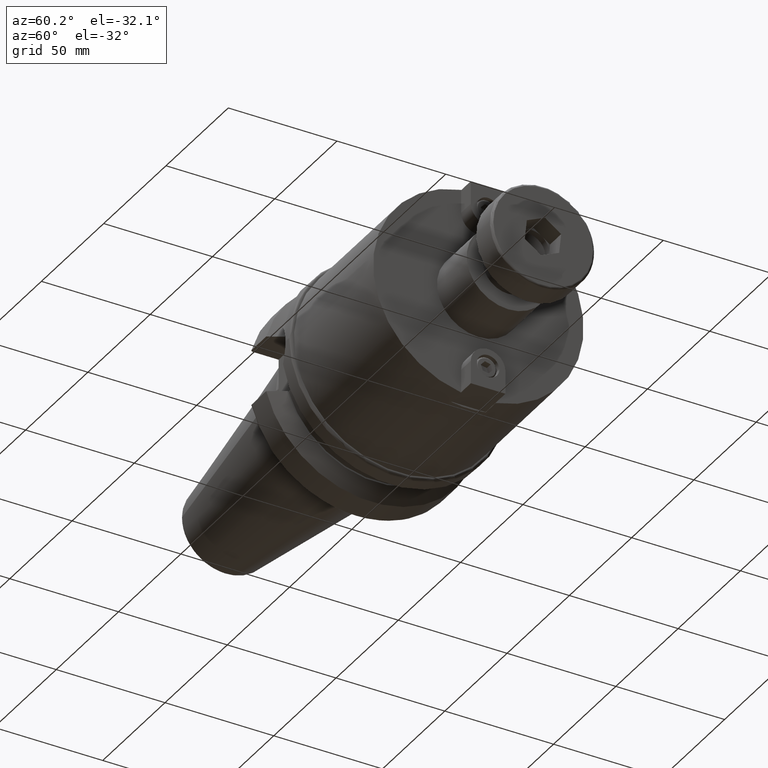
[diagram: clean part render]
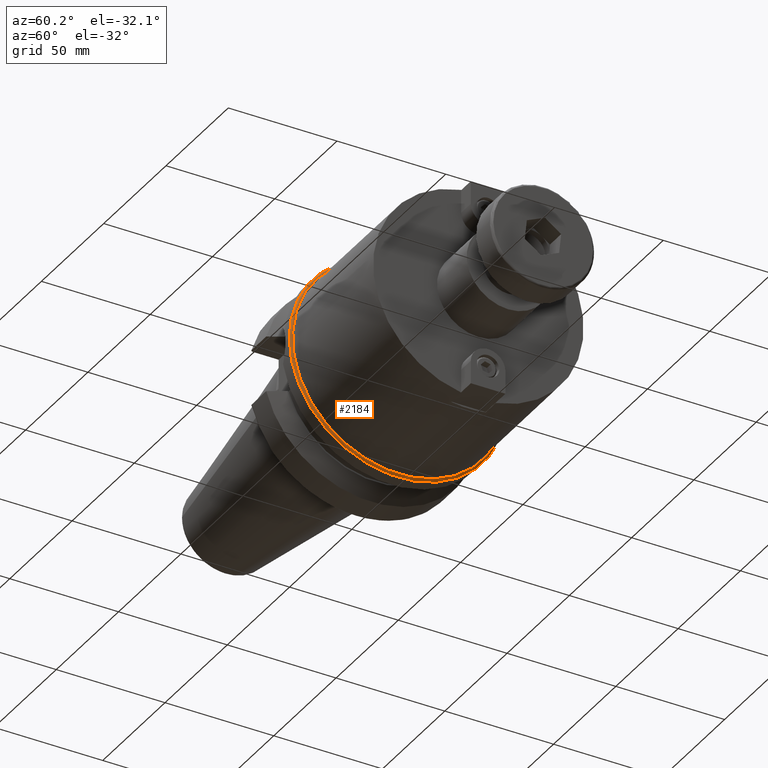
[diagram: same view with one face highlighted and labeled with its STEP entity id]
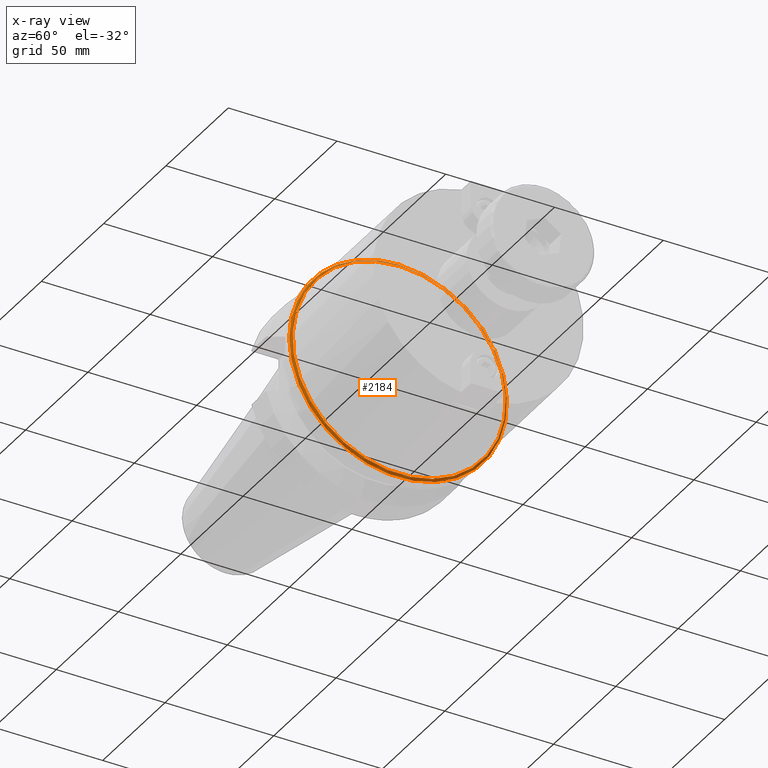
[diagram: x-ray of the same camera — body ghosted, the highlighted face saturated]
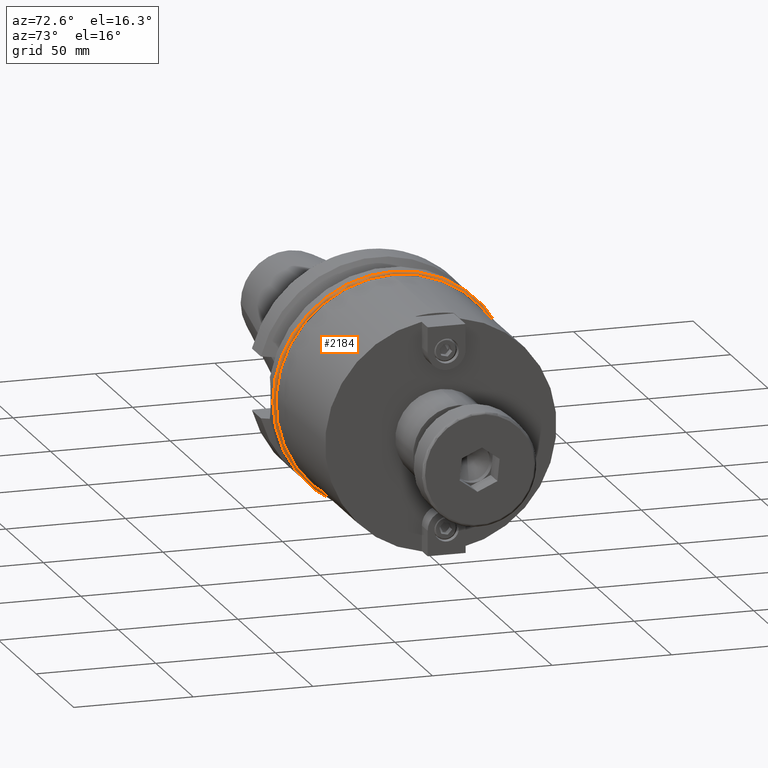
[diagram: same view with one face highlighted and labeled with its STEP entity id]
A machine part, auxiliary view. The second image highlights one B-rep face of the part: STEP entity #2184.
The next image is the same camera in x-ray: the body ghosted, the highlighted face saturated — about 18% of this face is hidden behind the body in this view.
A second angle (auxiliary view) of the same face is appended — the face is thin or edge-on in the first view.
In plain terms, the highlighted toroidal blend (fillet) surface has major radius 49 mm and minor (blend) radius 1 mm.
Its self-contained STEP definition (entity closure, byte-faithful):
#439=TOROIDAL_SURFACE('',#2491,49.,1.00000000000001);
#564=CIRCLE('',#2438,50.);
#567=CIRCLE('',#2441,50.);
#593=CIRCLE('',#2492,49.);
#594=CIRCLE('',#2493,1.00000000000001);
#717=FACE_OUTER_BOUND('',#831,.T.);
#831=EDGE_LOOP('',(#1826,#1827,#1828,#1829,#1830));
#1197=VERTEX_POINT('',#3585);
#1198=VERTEX_POINT('',#3586);
#1229=VERTEX_POINT('',#3750);
#1385=EDGE_CURVE('',#1197,#1198,#564,.T.);
#1390=EDGE_CURVE('',#1198,#1197,#567,.T.);
#1442=EDGE_CURVE('',#1229,#1229,#593,.T.);
#1443=EDGE_CURVE('',#1229,#1198,#594,.T.);
#1826=ORIENTED_EDGE('',*,*,#1442,.F.);
#1827=ORIENTED_EDGE('',*,*,#1443,.T.);
#1828=ORIENTED_EDGE('',*,*,#1390,.T.);
#1829=ORIENTED_EDGE('',*,*,#1385,.T.);
#1830=ORIENTED_EDGE('',*,*,#1443,.F.);
#2184=ADVANCED_FACE('',(#717),#439,.T.);
#2438=AXIS2_PLACEMENT_3D('',#3587,#2820,#2821);
#2441=AXIS2_PLACEMENT_3D('',#3603,#2827,#2828);
#2491=AXIS2_PLACEMENT_3D('',#3749,#2945,#2946);
#2492=AXIS2_PLACEMENT_3D('',#3751,#2947,#2948);
#2493=AXIS2_PLACEMENT_3D('',#3752,#2949,#2950);
#2820=DIRECTION('center_axis',(1.,0.,0.));
#2821=DIRECTION('ref_axis',(0.,0.,-1.));
#2827=DIRECTION('center_axis',(1.,0.,0.));
#2828=DIRECTION('ref_axis',(0.,0.,-1.));
#2945=DIRECTION('center_axis',(1.,0.,0.));
#2946=DIRECTION('ref_axis',(0.,0.,-1.));
#2947=DIRECTION('center_axis',(1.,0.,0.));
#2948=DIRECTION('ref_axis',(0.,0.,-1.));
#2949=DIRECTION('center_axis',(0.,-1.,-1.22464679914735E-16));
#2950=DIRECTION('ref_axis',(0.,-1.22464679914735E-16,1.));
#3585=CARTESIAN_POINT('',(37.,-50.,-6.12323399573677E-15));
#3586=CARTESIAN_POINT('',(37.,-6.12323399573677E-15,50.));
#3587=CARTESIAN_POINT('Origin',(37.,0.,0.));
#3603=CARTESIAN_POINT('Origin',(37.,0.,0.));
#3749=CARTESIAN_POINT('Origin',(37.,0.,0.));
#3750=CARTESIAN_POINT('',(38.,-6.00076931582203E-15,49.));
#3751=CARTESIAN_POINT('Origin',(38.,0.,0.));
#3752=CARTESIAN_POINT('Origin',(37.,-6.00076931582203E-15,49.));